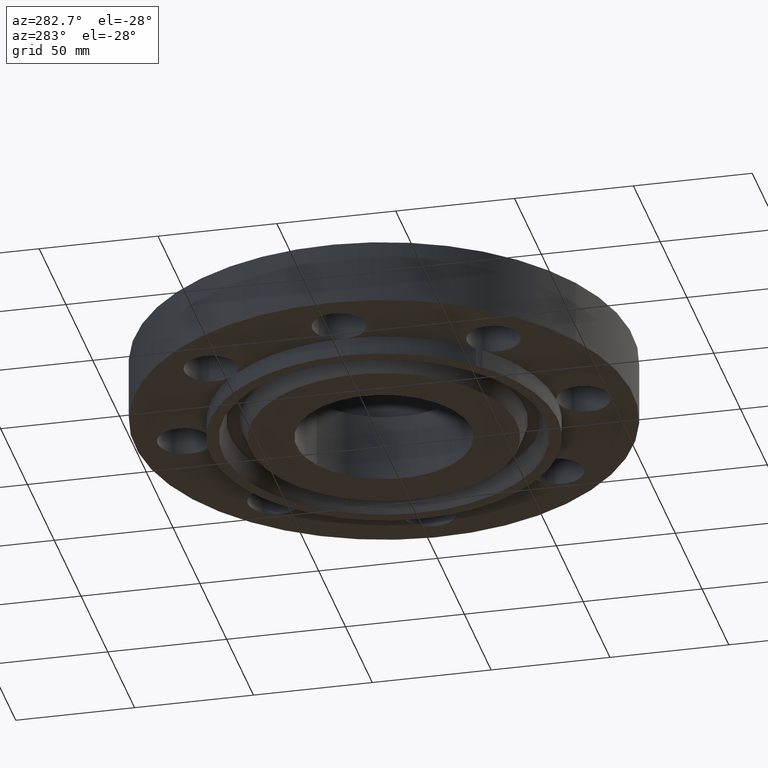
[diagram: clean part render]
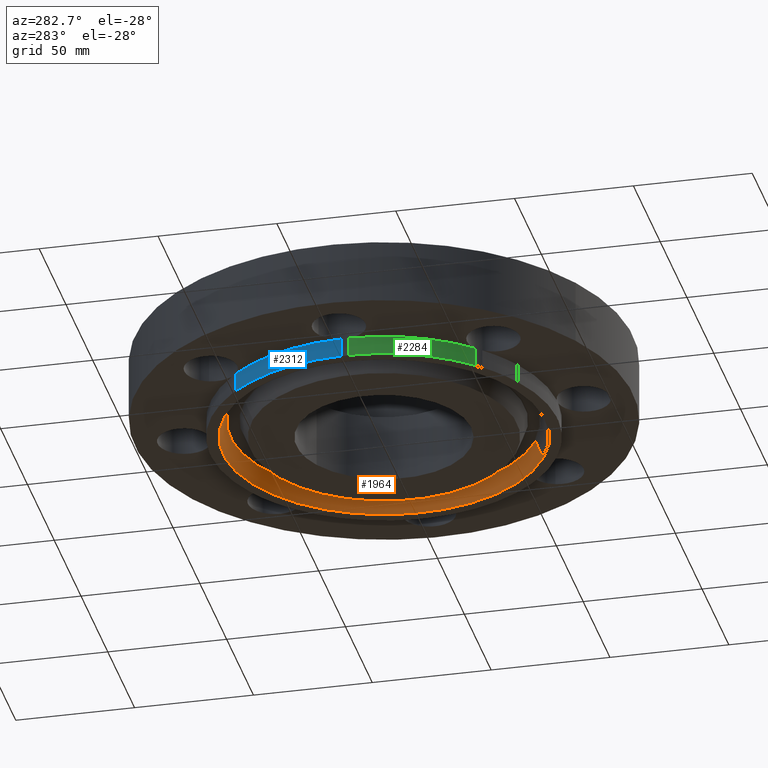
[diagram: same view with three faces highlighted in distinct colors, each labeled with its STEP entity id]
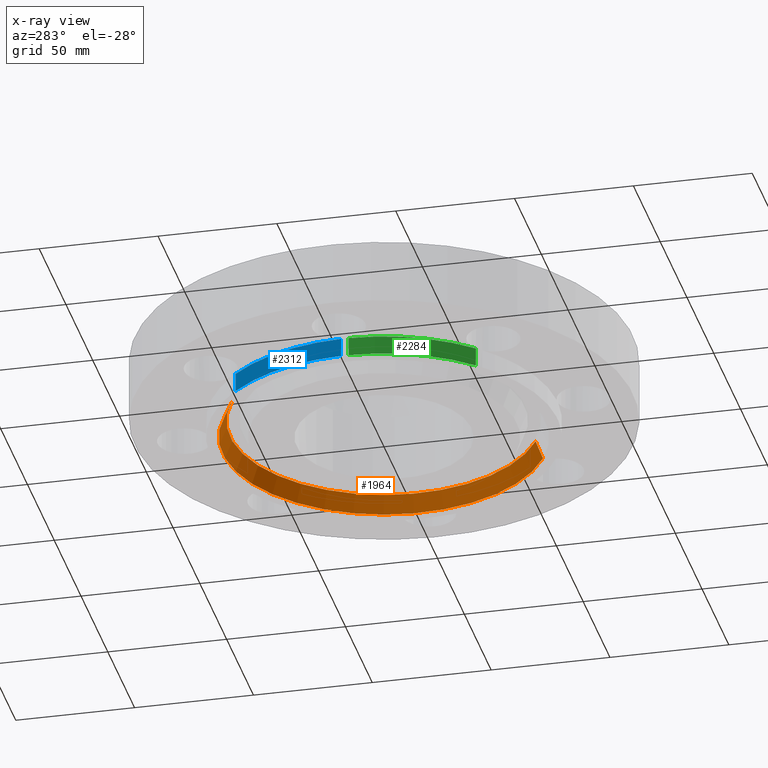
[diagram: x-ray of the same camera — body ghosted, the three highlighted faces saturated]
A machine part, auxiliary view with three faces highlighted in distinct colors.
The next image is the same camera in x-ray (body ghosted, the three faces saturated) — at least one of them is partly hidden behind the body in this view.
Their STEP definitions:

[orange] entity #1964 — the highlighted conical surface has half-angle 23 deg.
#932=AXIS2_PLACEMENT_3D('Circle Axis2P3D',#930,#931,$) ;
#1951=AXIS2_PLACEMENT_3D('Cone Axis2P3D',#1948,#1949,#1950) ;
#1955=AXIS2_PLACEMENT_3D('Circle Axis2P3D',#1953,#1954,$) ;
#896=CARTESIAN_POINT('Vertex',(-1.22117191556,2.23534019754,-0.0188873350167)) ;
#898=CARTESIAN_POINT('Vertex',(1.22117191556,-2.23534019754,-0.0188873350169)) ;
#930=CARTESIAN_POINT('Axis2P3D Location',(0.,0.,-0.0188873350179)) ;
#1919=CARTESIAN_POINT('Vertex',(1.28102503915,-2.3449006054,-0.313000000001)) ;
#1921=CARTESIAN_POINT('Vertex',(-1.28102503915,2.34490060534,-0.313000000001)) ;
#1924=CARTESIAN_POINT('Line Origine',(-1.25109847736,2.29012040146,-0.165943667509)) ;
#1929=CARTESIAN_POINT('Line Origine',(1.25109847736,-2.29012040146,-0.165943667509)) ;
#1948=CARTESIAN_POINT('Axis2P3D Location',(0.,0.,-0.0188873350169)) ;
#1953=CARTESIAN_POINT('Axis2P3D Location',(0.,0.,-0.313)) ;
#931=DIRECTION('Axis2P3D Direction',(0.,0.,0.0393700787402)) ;
#1925=DIRECTION('Vector Direction',(-0.00737505833566,0.0134999537303,-0.0362403485611)) ;
#1930=DIRECTION('Vector Direction',(0.00737505833566,-0.0134999537303,-0.0362403485611)) ;
#1949=DIRECTION('Axis2P3D Direction',(-0.,-0.,-0.0393700787402)) ;
#1950=DIRECTION('Axis2P3D XDirection',(-0.0188750212049,0.0345504945626,0.)) ;
#1954=DIRECTION('Axis2P3D Direction',(0.,-0.,-0.0393700787402)) ;
#1926=VECTOR('Line Direction',#1925,0.0393700787402) ;
#1931=VECTOR('Line Direction',#1930,0.0393700787402) ;
#1959=ORIENTED_EDGE('',*,*,#1957,.T.) ;
#1960=ORIENTED_EDGE('',*,*,#1933,.T.) ;
#1961=ORIENTED_EDGE('',*,*,#934,.T.) ;
#1962=ORIENTED_EDGE('',*,*,#1928,.F.) ;
#1964=ADVANCED_FACE('PartBody',(#1963),#1952,.F.) ;
#933=CIRCLE('generated circle',#932,2.5471565806) ;
#1956=CIRCLE('generated circle',#1955,2.67200000001) ;
#1952=CONICAL_SURFACE('Cone',#1951,2.5471565806,0.401425727959) ;
#934=EDGE_CURVE('',#899,#897,#933,.T.) ;
#1928=EDGE_CURVE('',#1922,#897,#1927,.F.) ;
#1933=EDGE_CURVE('',#1920,#899,#1932,.F.) ;
#1957=EDGE_CURVE('',#1922,#1920,#1956,.T.) ;
#1958=EDGE_LOOP('',(#1959,#1960,#1961,#1962)) ;
#1963=FACE_OUTER_BOUND('',#1958,.T.) ;
#1927=LINE('Line',#1924,#1926) ;
#1932=LINE('Line',#1929,#1931) ;
#897=VERTEX_POINT('',#896) ;
#899=VERTEX_POINT('',#898) ;
#1920=VERTEX_POINT('',#1919) ;
#1922=VERTEX_POINT('',#1921) ;

[blue] entity #2312 — the highlighted cylindrical surface (partial cylindrical patch) has radius 73.025 mm, axis along (0, 0, -1).
#2005=AXIS2_PLACEMENT_3D('Circle Axis2P3D',#2003,#2004,$) ;
#2077=AXIS2_PLACEMENT_3D('Cylinder Axis2P3D',#2074,#2075,#2076) ;
#2139=AXIS2_PLACEMENT_3D('Circle Axis2P3D',#2137,#2138,$) ;
#1645=CARTESIAN_POINT('Vertex',(-2.87433912388,0.061640903685,4.5250942101E-012)) ;
#1648=CARTESIAN_POINT('Line Origine',(-2.87433912388,0.0616409036858,0.373500000005)) ;
#1652=CARTESIAN_POINT('Vertex',(-2.87433912391,0.0616409037128,-0.313000000001)) ;
#1759=CARTESIAN_POINT('Vertex',(-2.07605138692,1.98887798496,-0.313000000001)) ;
#1762=CARTESIAN_POINT('Line Origine',(-2.07605138692,1.98887798493,0.373499999999)) ;
#1766=CARTESIAN_POINT('Vertex',(-2.07605138692,1.98887798493,4.5250942101E-012)) ;
#2003=CARTESIAN_POINT('Axis2P3D Location',(1.10624230686E-010,-6.86535343011E-011,0.)) ;
#2074=CARTESIAN_POINT('Axis2P3D Location',(0.,0.,0.658500000003)) ;
#2137=CARTESIAN_POINT('Axis2P3D Location',(1.10624230686E-010,-5.69206274415E-011,-0.313000000001)) ;
#1649=DIRECTION('Vector Direction',(0.,0.,-0.0393700787402)) ;
#1763=DIRECTION('Vector Direction',(0.,0.,-0.0393700787402)) ;
#2004=DIRECTION('Axis2P3D Direction',(0.,0.,-0.0393700787402)) ;
#2075=DIRECTION('Axis2P3D Direction',(0.,0.,-0.0393700787402)) ;
#2076=DIRECTION('Axis2P3D XDirection',(-0.0393610287418,0.000844106863195,-0.)) ;
#2138=DIRECTION('Axis2P3D Direction',(0.,0.,-0.0393700787402)) ;
#1650=VECTOR('Line Direction',#1649,0.0393700787402) ;
#1764=VECTOR('Line Direction',#1763,0.0393700787402) ;
#2307=ORIENTED_EDGE('',*,*,#2141,.F.) ;
#2308=ORIENTED_EDGE('',*,*,#1654,.F.) ;
#2309=ORIENTED_EDGE('',*,*,#2007,.T.) ;
#2310=ORIENTED_EDGE('',*,*,#1768,.T.) ;
#2312=ADVANCED_FACE('PartBody',(#2311),#2078,.T.) ;
#2006=CIRCLE('generated circle',#2005,2.87500000015) ;
#2140=CIRCLE('generated circle',#2139,2.87500000015) ;
#2078=CYLINDRICAL_SURFACE('generated cylinder',#2077,2.87500000001) ;
#1654=EDGE_CURVE('',#1646,#1653,#1651,.T.) ;
#1768=EDGE_CURVE('',#1767,#1760,#1765,.T.) ;
#2007=EDGE_CURVE('',#1646,#1767,#2006,.T.) ;
#2141=EDGE_CURVE('',#1653,#1760,#2140,.T.) ;
#2306=EDGE_LOOP('',(#2307,#2308,#2309,#2310)) ;
#2311=FACE_OUTER_BOUND('',#2306,.T.) ;
#1651=LINE('Line',#1648,#1650) ;
#1765=LINE('Line',#1762,#1764) ;
#1646=VERTEX_POINT('',#1645) ;
#1653=VERTEX_POINT('',#1652) ;
#1760=VERTEX_POINT('',#1759) ;
#1767=VERTEX_POINT('',#1766) ;

[green] entity #2284 — the highlighted cylindrical surface (partial cylindrical patch) has radius 73.025 mm, axis along (0, 0, -1).
#2010=AXIS2_PLACEMENT_3D('Circle Axis2P3D',#2008,#2009,$) ;
#2077=AXIS2_PLACEMENT_3D('Cylinder Axis2P3D',#2074,#2075,#2076) ;
#2134=AXIS2_PLACEMENT_3D('Circle Axis2P3D',#2132,#2133,$) ;
#1539=CARTESIAN_POINT('Vertex',(-2.07605138692,-1.98887798493,4.5250942101E-012)) ;
#1542=CARTESIAN_POINT('Line Origine',(-2.07605138692,-1.98887798493,0.373499999999)) ;
#1546=CARTESIAN_POINT('Vertex',(-2.07605138692,-1.98887798494,-0.313000000001)) ;
#1659=CARTESIAN_POINT('Vertex',(-2.87433912391,-0.0616409036986,-0.313000000001)) ;
#1662=CARTESIAN_POINT('Line Origine',(-2.87433912388,-0.0616409036858,0.373500000005)) ;
#1666=CARTESIAN_POINT('Vertex',(-2.87433912388,-0.061640903685,4.5250942101E-012)) ;
#2008=CARTESIAN_POINT('Axis2P3D Location',(1.10625069909E-010,5.93219261989E-011,0.)) ;
#2074=CARTESIAN_POINT('Axis2P3D Location',(0.,0.,0.658500000003)) ;
#2132=CARTESIAN_POINT('Axis2P3D Location',(1.10625069909E-010,7.10545533172E-011,-0.313000000001)) ;
#1543=DIRECTION('Vector Direction',(0.,0.,-0.0393700787402)) ;
#1663=DIRECTION('Vector Direction',(0.,0.,-0.0393700787402)) ;
#2009=DIRECTION('Axis2P3D Direction',(0.,0.,-0.0393700787402)) ;
#2075=DIRECTION('Axis2P3D Direction',(0.,0.,-0.0393700787402)) ;
#2076=DIRECTION('Axis2P3D XDirection',(-0.0393610287418,0.000844106863195,-0.)) ;
#2133=DIRECTION('Axis2P3D Direction',(0.,0.,-0.0393700787402)) ;
#1544=VECTOR('Line Direction',#1543,0.0393700787402) ;
#1664=VECTOR('Line Direction',#1663,0.0393700787402) ;
#2279=ORIENTED_EDGE('',*,*,#1668,.T.) ;
#2280=ORIENTED_EDGE('',*,*,#2136,.F.) ;
#2281=ORIENTED_EDGE('',*,*,#1548,.F.) ;
#2282=ORIENTED_EDGE('',*,*,#2012,.T.) ;
#2284=ADVANCED_FACE('PartBody',(#2283),#2078,.T.) ;
#2011=CIRCLE('generated circle',#2010,2.87500000015) ;
#2135=CIRCLE('generated circle',#2134,2.87500000015) ;
#2078=CYLINDRICAL_SURFACE('generated cylinder',#2077,2.87500000001) ;
#1548=EDGE_CURVE('',#1540,#1547,#1545,.T.) ;
#1668=EDGE_CURVE('',#1667,#1660,#1665,.T.) ;
#2012=EDGE_CURVE('',#1540,#1667,#2011,.T.) ;
#2136=EDGE_CURVE('',#1547,#1660,#2135,.T.) ;
#2278=EDGE_LOOP('',(#2279,#2280,#2281,#2282)) ;
#2283=FACE_OUTER_BOUND('',#2278,.T.) ;
#1545=LINE('Line',#1542,#1544) ;
#1665=LINE('Line',#1662,#1664) ;
#1540=VERTEX_POINT('',#1539) ;
#1547=VERTEX_POINT('',#1546) ;
#1660=VERTEX_POINT('',#1659) ;
#1667=VERTEX_POINT('',#1666) ;